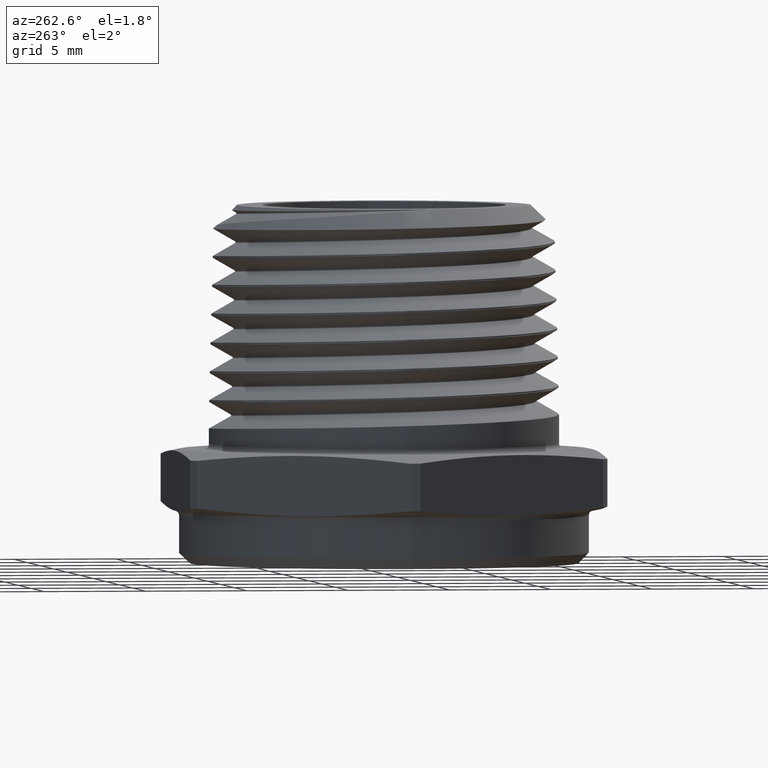
[diagram: clean part render]
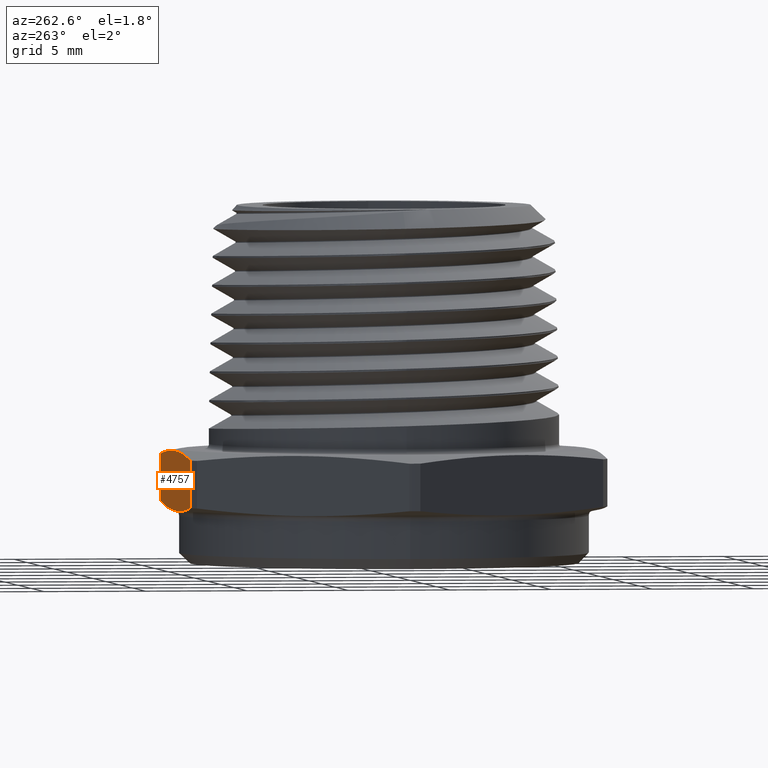
[diagram: same view with one face highlighted and labeled with its STEP entity id]
A machine part, auxiliary view. The second image highlights one B-rep face of the part: STEP entity #4757.
In plain terms, the highlighted planar face has unit normal (0, -1, 0).
Its self-contained STEP definition (entity closure, byte-faithful):
#107 = ORIENTED_EDGE ( 'NONE', *, *, #2827, .T. ) ;
#108 = ORIENTED_EDGE ( 'NONE', *, *, #2786, .T. ) ;
#109 = ORIENTED_EDGE ( 'NONE', *, *, #2855, .T. ) ;
#110 = ORIENTED_EDGE ( 'NONE', *, *, #2783, .T. ) ;
#235 = CARTESIAN_POINT ( 'NONE',  ( -0.1846688683639229100, 0.4049999999999999700, 0.1095984099806901100 ) ) ;
#236 = CARTESIAN_POINT ( 'NONE',  ( -0.1476261385661209700, 0.4050000000000000300, 0.1126481207821148600 ) ) ;
#240 = CARTESIAN_POINT ( 'NONE',  ( -0.2215832922029026800, 0.4050000000000000300, 0.1058323148701303800 ) ) ;
#241 = CARTESIAN_POINT ( 'NONE',  ( -0.07366055179631741900, 0.4050000000000000300, 0.1167913988028560200 ) ) ;
#242 = CARTESIAN_POINT ( 'NONE',  ( -0.03669986454074519700, 0.4050000000000000300, 0.1178790002141681400 ) ) ;
#243 = CARTESIAN_POINT ( 'NONE',  ( 0.07410859054405145900, 0.4050000000000000300, 0.1178652587683187800 ) ) ;
#244 = CARTESIAN_POINT ( 'NONE',  ( 0.1478797044767211400, 0.4049999999999999700, 0.1133517257805392000 ) ) ;
#245 = CARTESIAN_POINT ( 'NONE',  ( 0.2215832922029026800, 0.4050000000000000300, 0.1058323148701303800 ) ) ;
#614 = PLANE ( 'NONE',  #4288 ) ;
#616 = CARTESIAN_POINT ( 'NONE',  ( 0.2338268590217982600, 0.4050000000000000300, 0.1200000000000000000 ) ) ;
#621 = DIRECTION ( 'NONE',  ( 0.0000000000000000000, -1.000000000000000000, 0.0000000000000000000 ) ) ;
#622 = DIRECTION ( 'NONE',  ( 0.0000000000000000000, -0.0000000000000000000, -1.000000000000000000 ) ) ;
#1044 = CARTESIAN_POINT ( 'NONE',  ( -0.2215832922029026800, 0.4050000000000000300, 0.1058323148701303800 ) ) ;
#1045 = CARTESIAN_POINT ( 'NONE',  ( 0.2215832922029026800, 0.4050000000000000300, 0.1058323148701303800 ) ) ;
#1047 = CARTESIAN_POINT ( 'NONE',  ( -0.2215832922029026800, 0.4050000000000000300, 0.01416768512986962300 ) ) ;
#1170 = VERTEX_POINT ( 'NONE', #5147 ) ;
#1934 = EDGE_LOOP ( 'NONE', ( #107, #108, #109, #110 ) ) ;
#2048 = FACE_OUTER_BOUND ( 'NONE', #1934, .T. ) ;
#2783 = EDGE_CURVE ( 'NONE', #4835, #1170, #4701, .T. ) ;
#2786 = EDGE_CURVE ( 'NONE', #4837, #4834, #4706, .T. ) ;
#2827 = EDGE_CURVE ( 'NONE', #1170, #4837, #2913, .T. ) ;
#2855 = EDGE_CURVE ( 'NONE', #4834, #4835, #2922, .T. ) ;
#2913 = B_SPLINE_CURVE_WITH_KNOTS ( 'NONE', 3,
 ( #3997, #4010, #4019, #4020, #4022, #4024, #4026, #4028 ),
 .UNSPECIFIED., .F., .F.,
 ( 4, 2, 2, 4 ),
 ( 0.02276526748333865600, 0.02841013490012901700, 0.03123256860852419900, 0.03405500231691938100 ),
 .UNSPECIFIED. ) ;
#2922 = B_SPLINE_CURVE_WITH_KNOTS ( 'NONE', 3,
 ( #240, #235, #236, #241, #242, #243, #244, #245 ),
 .UNSPECIFIED., .F., .F.,
 ( 4, 2, 2, 4 ),
 ( 0.01016691778242289700, 0.01299211520085472200, 0.01581731261928654600, 0.02146770745615019700 ),
 .UNSPECIFIED. ) ;
#3997 = CARTESIAN_POINT ( 'NONE',  ( 0.2215832922029026800, 0.4050000000000000300, 0.01416768512986962300 ) ) ;
#4010 = CARTESIAN_POINT ( 'NONE',  ( 0.1478797044767212700, 0.4049999999999999700, 0.006648274219460791600 ) ) ;
#4019 = CARTESIAN_POINT ( 'NONE',  ( 0.07410859054405169500, 0.4049999999999999200, 0.002134741231681228400 ) ) ;
#4020 = CARTESIAN_POINT ( 'NONE',  ( -0.03669986454074510700, 0.4050000000000000300, 0.002120999785831837300 ) ) ;
#4022 = CARTESIAN_POINT ( 'NONE',  ( -0.07366055179631739200, 0.4050000000000000300, 0.003208601197144001800 ) ) ;
#4024 = CARTESIAN_POINT ( 'NONE',  ( -0.1476261385661210300, 0.4050000000000000300, 0.007351879217885147000 ) ) ;
#4026 = CARTESIAN_POINT ( 'NONE',  ( -0.1846688683639230200, 0.4050000000000000300, 0.01040159001930991200 ) ) ;
#4028 = CARTESIAN_POINT ( 'NONE',  ( -0.2215832922029026800, 0.4050000000000000300, 0.01416768512986962300 ) ) ;
#4059 = CARTESIAN_POINT ( 'NONE',  ( 0.2215832922029026800, 0.4050000000000000300, 0.0000000000000000000 ) ) ;
#4060 = DIRECTION ( 'NONE',  ( -0.0000000000000000000, -0.0000000000000000000, -1.000000000000000000 ) ) ;
#4089 = CARTESIAN_POINT ( 'NONE',  ( -0.2215832922029026800, 0.4050000000000000300, 0.0000000000000000000 ) ) ;
#4092 = DIRECTION ( 'NONE',  ( 0.0000000000000000000, 0.0000000000000000000, 1.000000000000000000 ) ) ;
#4288 = AXIS2_PLACEMENT_3D ( 'NONE', #616, #621, #622 ) ;
#4701 = LINE ( 'NONE', #4059, #4703 ) ;
#4703 = VECTOR ( 'NONE', #4060, 39.37007874015748100 ) ;
#4706 = LINE ( 'NONE', #4089, #4709 ) ;
#4709 = VECTOR ( 'NONE', #4092, 39.37007874015748100 ) ;
#4757 = ADVANCED_FACE ( 'NONE', ( #2048 ), #614, .F. ) ;
#4834 = VERTEX_POINT ( 'NONE', #1044 ) ;
#4835 = VERTEX_POINT ( 'NONE', #1045 ) ;
#4837 = VERTEX_POINT ( 'NONE', #1047 ) ;
#5147 = CARTESIAN_POINT ( 'NONE',  ( 0.2215832922029026800, 0.4050000000000000300, 0.01416768512986962300 ) ) ;